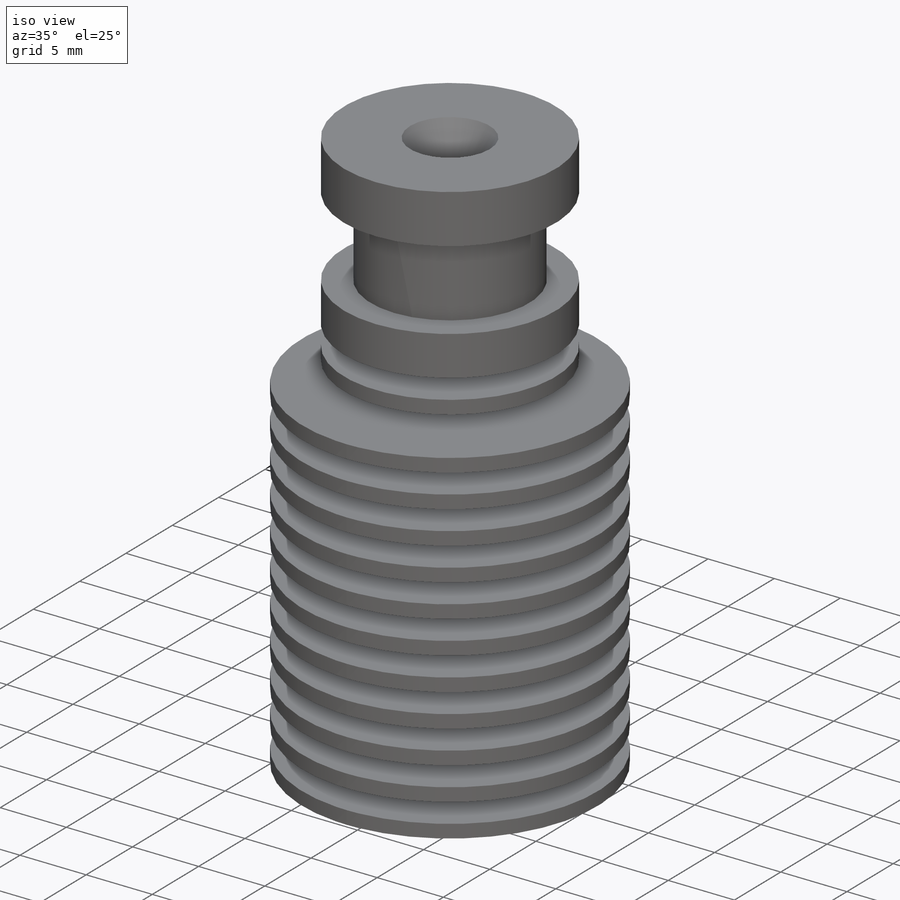
[diagram: iso view]
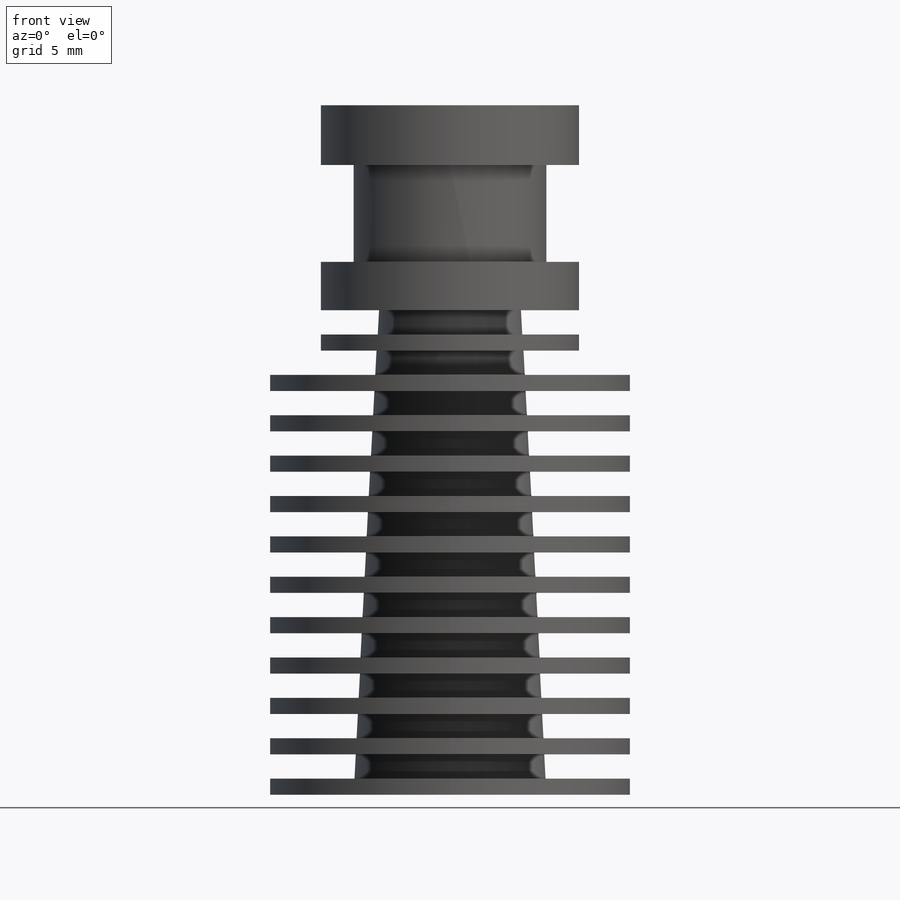
[diagram: front view]
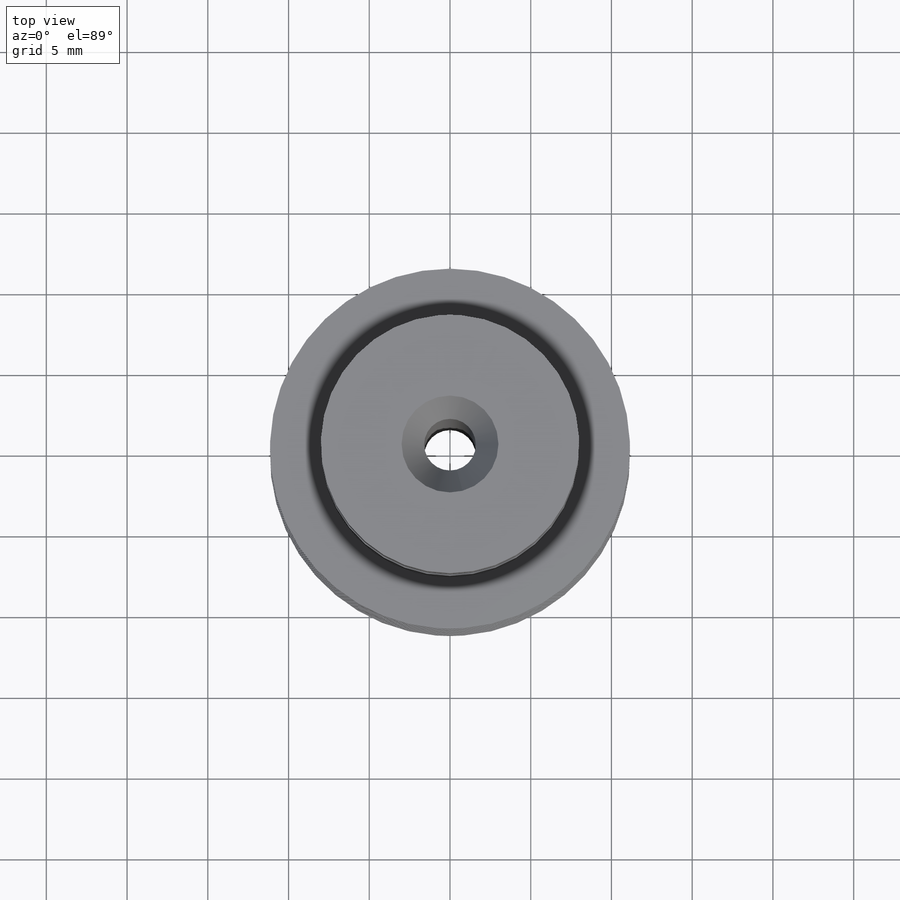
[diagram: top view]
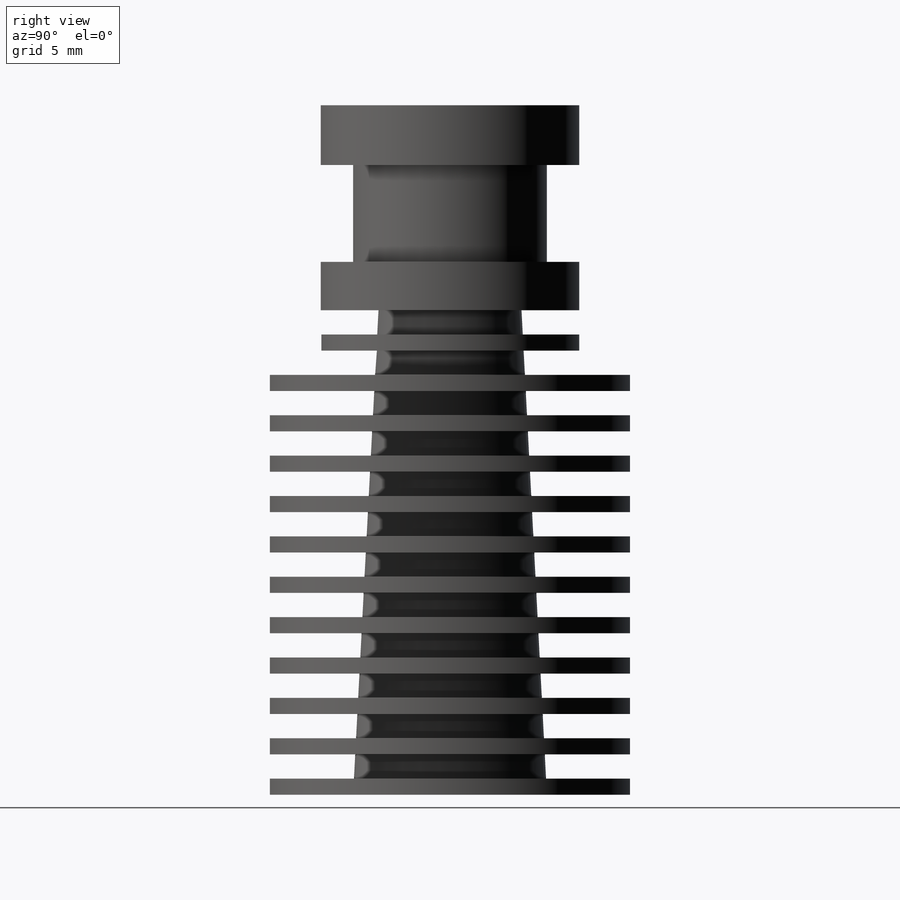
[diagram: right view]
SOLIDWORKS PART (.sldprt)
format: sldprt  version: not decoded by parser v0  size: 294,400 bytes
history: native  units: mm
features: sketch x8, extrude x6, cut_extrude x2, material x1, pattern_linear x1 (+12 scaffold rows collapsed)
feature tree (30):
  scaffold x12  (default folders/planes/origin — collapsed)
  material  "Material <not specified>"
  sketch  "Sketch1"  dims[D1=~24.110038mm]
  extrude  "Fin"  Depth=1mm
  pattern_linear  "Fins"  Count1=11 Count2=1 Spacing1=2.5mm Spacing2=50mm
  sketch  "Sketch2"  dims[D1=16.0mm D2=12.0mm]
  extrude  "Mounting Flange"  Depth=3.7mm
  extrude  "Mounting Groove"  [1 undecoded]
  sketch  "Sketch2<3>"  dims[D1=6.0mm]
  extrude  "Stop Flange"  [1 undecoded]
  sketch  "Sketch2<4>"  dims[D1=3.0mm D19=33.0mm]
  extrude  "Boss-Extrude6"  [1 undecoded]
  sketch  "Sketch2<5>"  dims[D3=3.0deg]
  extrude  "Boss-Extrude7"  [1 undecoded]
  sketch  "Sketch2<6>"  dims[D1=1.0mm D19=27.5mm]
  sketch  "Sketch3"  dims[D1=3.2mm]
  cut_extrude  "Filament Bore"  [1 undecoded]
  sketch  "Sketch4"  dims[D1=6.0mm]
  cut_extrude  "Entrance Funnel"  Depth=3mm
decode coverage: 12 of 17 modeling features carry decoded parameters
note: ~ marks probable driven/reference dimensions
note: 5 parameter values undecoded
summary: no parameter record found for 5 features
note: suppression state not decoded; provenance and decode notes live in map.json
